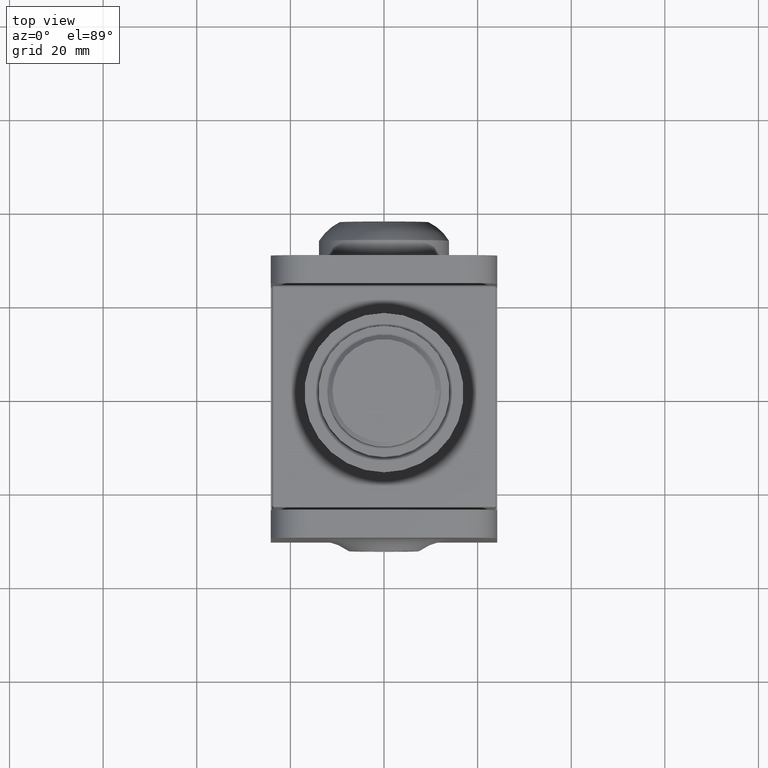
[diagram: clean part render]
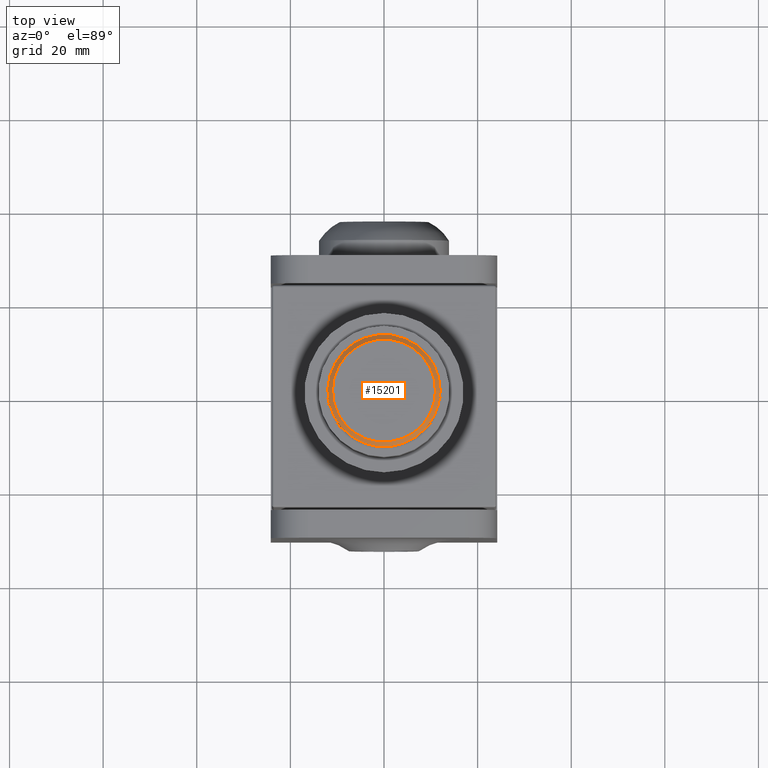
[diagram: same view with one face highlighted and labeled with its STEP entity id]
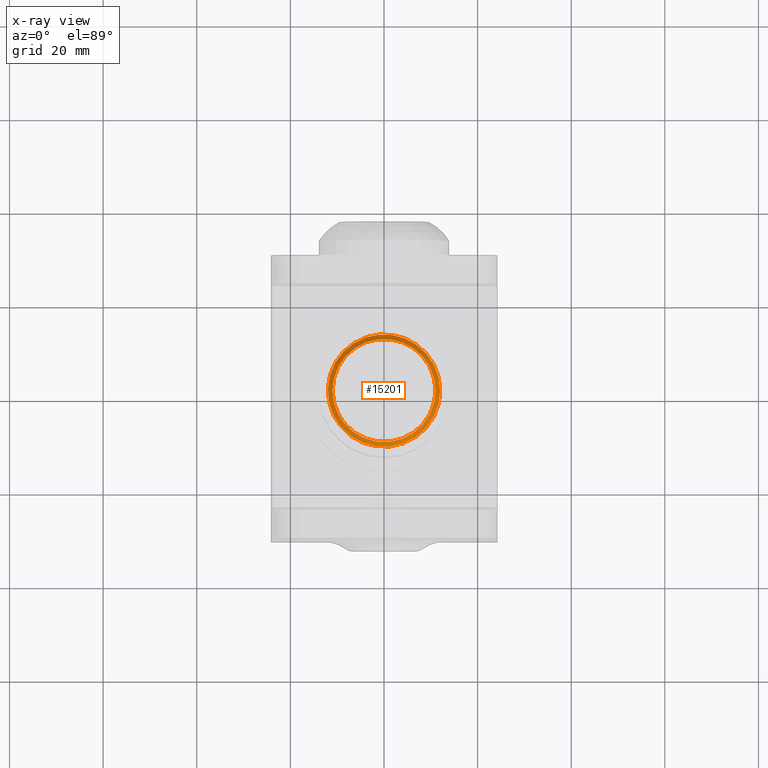
[diagram: x-ray of the same camera — body ghosted, the highlighted face saturated]
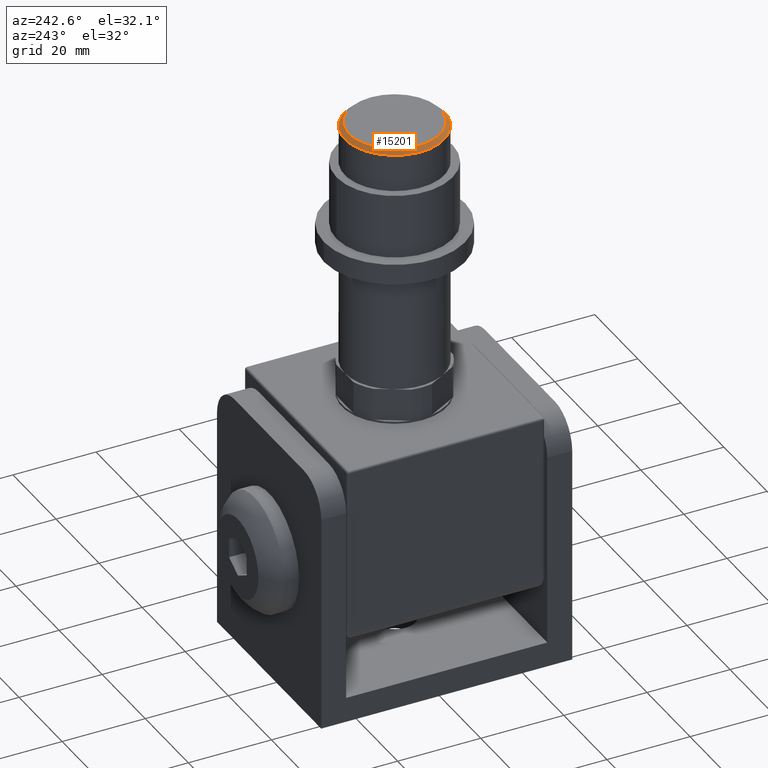
[diagram: same view with one face highlighted and labeled with its STEP entity id]
A machine part, top view. The second image highlights one B-rep face of the part: STEP entity #15201.
The next image is the same camera in x-ray: the body ghosted, the highlighted face saturated — about 0% of this face is hidden behind the body in this view.
A second angle (auxiliary view) of the same face is appended — the face is thin or edge-on in the first view.
In plain terms, the highlighted conical surface has half-angle 45 deg.
Its self-contained STEP definition (entity closure, byte-faithful):
#53 = EDGE_LOOP ( 'NONE', ( #12292 ) ) ;
#474 = ORIENTED_EDGE ( 'NONE', *, *, #12390, .F. ) ;
#582 = VERTEX_POINT ( 'NONE', #13428 ) ;
#2376 = CIRCLE ( 'NONE', #2667, 11.00000000000002309 ) ;
#2494 = CONICAL_SURFACE ( 'NONE', #9051, 11.00000000000002309, 0.7853981633974509435 ) ;
#2667 = AXIS2_PLACEMENT_3D ( 'NONE', #3853, #6300, #12394 ) ;
#3624 = FACE_OUTER_BOUND ( 'NONE', #12782, .T. ) ;
#3729 = CARTESIAN_POINT ( 'NONE',  ( 11.00000000000002309, 0.000000000000000000, 89.90000000000000568 ) ) ;
#3853 = CARTESIAN_POINT ( 'NONE',  ( 0.000000000000000000, 0.000000000000000000, 89.90000000000000568 ) ) ;
#4176 = DIRECTION ( 'NONE',  ( 0.000000000000000000, 0.000000000000000000, -1.000000000000000000 ) ) ;
#4426 = CIRCLE ( 'NONE', #11255, 12.00000000000000178 ) ;
#4676 = DIRECTION ( 'NONE',  ( 0.000000000000000000, 0.000000000000000000, -1.000000000000000000 ) ) ;
#6300 = DIRECTION ( 'NONE',  ( 0.000000000000000000, 0.000000000000000000, 1.000000000000000000 ) ) ;
#8145 = FACE_BOUND ( 'NONE', #53, .T. ) ;
#8507 = VERTEX_POINT ( 'NONE', #3729 ) ;
#9051 = AXIS2_PLACEMENT_3D ( 'NONE', #10367, #4676, #11606 ) ;
#10367 = CARTESIAN_POINT ( 'NONE',  ( 0.000000000000000000, 0.000000000000000000, 89.90000000000000568 ) ) ;
#11255 = AXIS2_PLACEMENT_3D ( 'NONE', #11387, #4176, #12617 ) ;
#11387 = CARTESIAN_POINT ( 'NONE',  ( 0.000000000000000000, 0.000000000000000000, 88.90000000000003411 ) ) ;
#11606 = DIRECTION ( 'NONE',  ( -1.000000000000000000, 0.000000000000000000, 0.000000000000000000 ) ) ;
#11841 = EDGE_CURVE ( 'NONE', #8507, #8507, #2376, .T. ) ;
#12292 = ORIENTED_EDGE ( 'NONE', *, *, #11841, .F. ) ;
#12390 = EDGE_CURVE ( 'NONE', #582, #582, #4426, .T. ) ;
#12394 = DIRECTION ( 'NONE',  ( 1.000000000000000000, 0.000000000000000000, 0.000000000000000000 ) ) ;
#12617 = DIRECTION ( 'NONE',  ( 1.000000000000000000, 0.000000000000000000, 0.000000000000000000 ) ) ;
#12782 = EDGE_LOOP ( 'NONE', ( #474 ) ) ;
#13428 = CARTESIAN_POINT ( 'NONE',  ( 12.00000000000000178, 0.000000000000000000, 88.90000000000003411 ) ) ;
#15201 = ADVANCED_FACE ( 'NONE', ( #3624, #8145 ), #2494, .T. ) ;